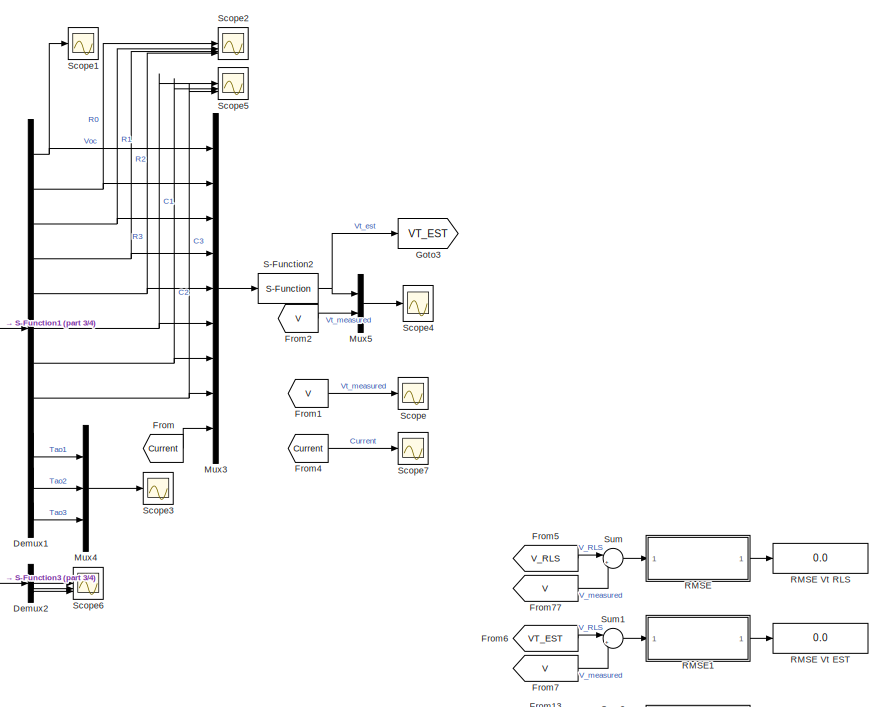
[diagram: root canvas - part 1/4, top right region]
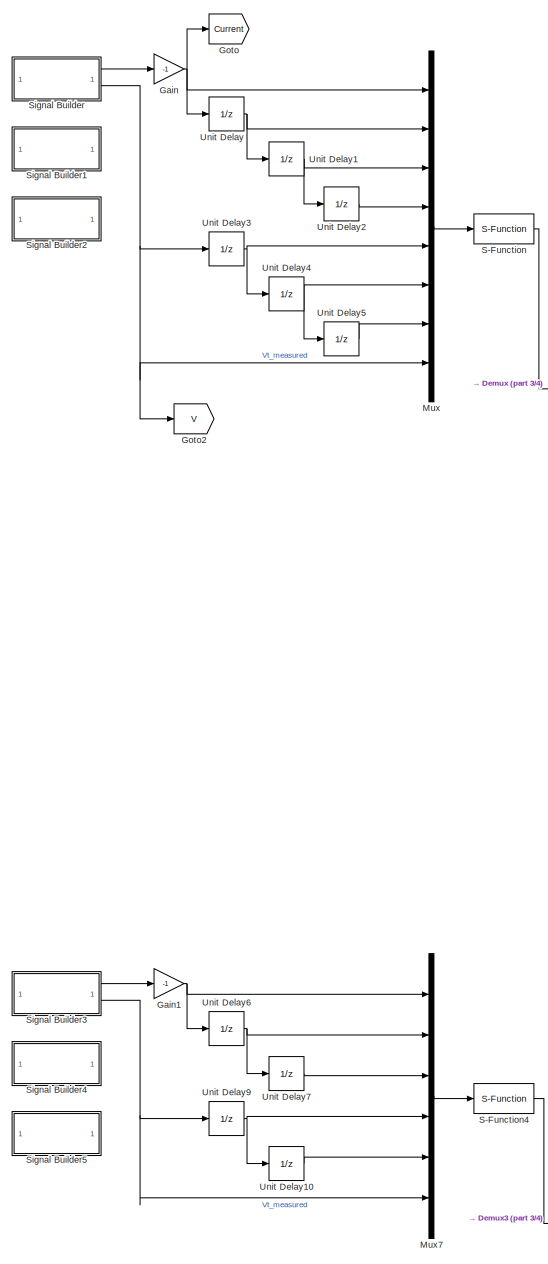
[diagram: root canvas - part 2/4, left side, full height]
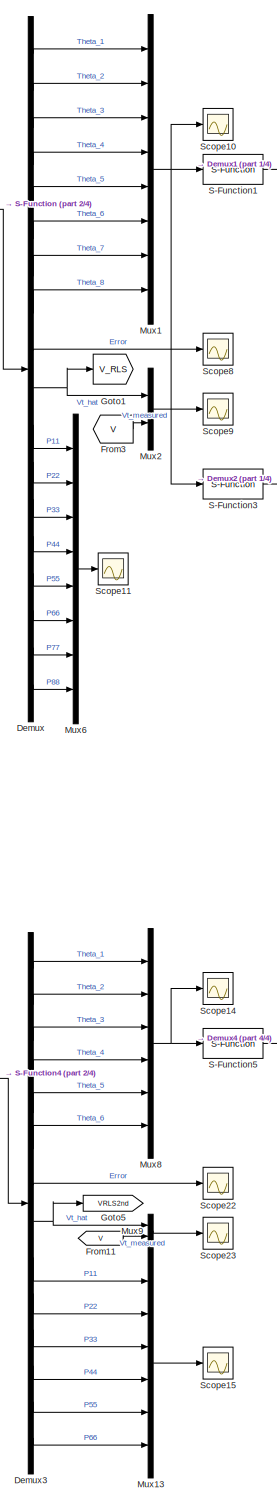
[diagram: root canvas - part 3/4, center side, full height]
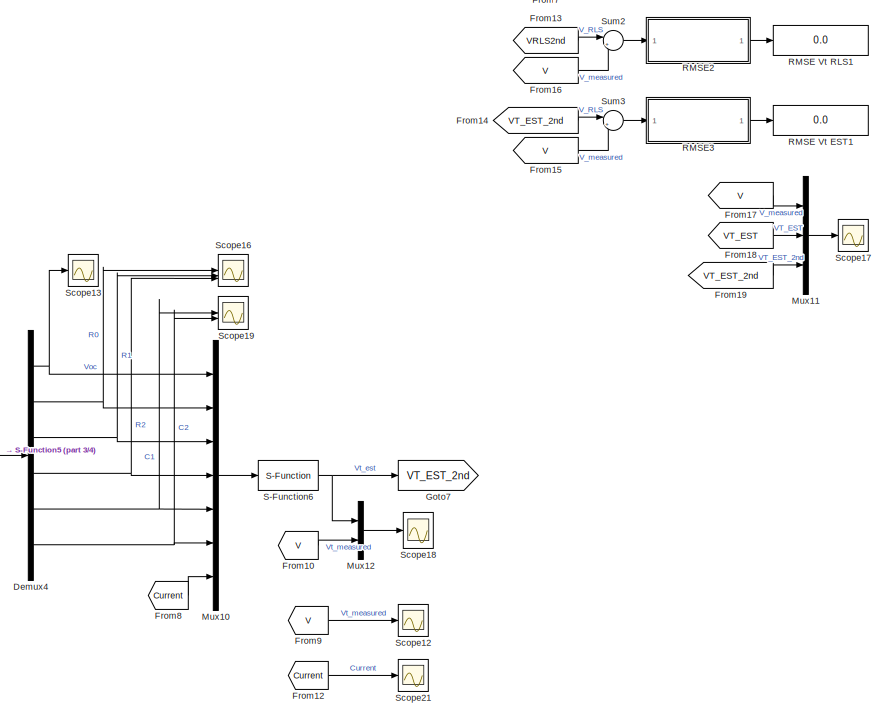
[diagram: root canvas - part 4/4, middle right region]
MODEL slx_dfcc60bb3e79
KIND model
CONFIG AbsTol = auto
CONFIG EnableMultiTasking = off
CONFIG FixedStep = auto
CONFIG MaxStep = auto
CONFIG MinStep = auto
CONFIG RelTol = 1e-3
CONFIG SampleTimeConstraint = Unconstrained
CONFIG SolverName = VariableStepAuto
CONFIG StartTime = 0.0
CONFIG StopTime = 7200
BLOCK [Demux] Demux
  Outputs = 18
BLOCK [Demux] Demux1
  Outputs = 11
BLOCK [Demux] Demux2
  Outputs = 3
BLOCK [Demux] Demux3
  Outputs = 14
BLOCK [Demux] Demux4
  Outputs = 6
BLOCK [From] From
  GotoTag = Current
BLOCK [From] From1
  GotoTag = V
BLOCK [From] From10
  GotoTag = V
BLOCK [From] From11
  GotoTag = V
BLOCK [From] From12
  GotoTag = Current
BLOCK [From] From13
  GotoTag = VRLS2nd
BLOCK [From] From14
  GotoTag = VT_EST_2nd
BLOCK [From] From15
  GotoTag = V
BLOCK [From] From16
  GotoTag = V
BLOCK [From] From17
  GotoTag = V
BLOCK [From] From18
  GotoTag = VT_EST
BLOCK [From] From19
  GotoTag = VT_EST_2nd
BLOCK [From] From2
  GotoTag = V
BLOCK [From] From3
  GotoTag = V
BLOCK [From] From4
  GotoTag = Current
BLOCK [From] From5
  GotoTag = V_RLS
BLOCK [From] From6
  GotoTag = VT_EST
BLOCK [From] From7
  GotoTag = V
BLOCK [From] From77
  GotoTag = V
BLOCK [From] From8
  GotoTag = Current
BLOCK [From] From9
  GotoTag = V
BLOCK [Gain] Gain
  Gain = -1
BLOCK [Gain] Gain1
  Gain = -1
BLOCK [Goto] Goto
  GotoTag = Current
BLOCK [Goto] Goto1
  GotoTag = V_RLS
BLOCK [Goto] Goto2
  GotoTag = V
BLOCK [Goto] Goto3
  GotoTag = VT_EST
BLOCK [Goto] Goto5
  GotoTag = VRLS2nd
BLOCK [Goto] Goto7
  GotoTag = VT_EST_2nd
BLOCK [Mux] Mux
  DisplayOption = bar
  Inputs = 8
BLOCK [Mux] Mux1
  DisplayOption = bar
  Inputs = 8
BLOCK [Mux] Mux10
  DisplayOption = bar
  Inputs = 7
BLOCK [Mux] Mux11
  DisplayOption = bar
  Inputs = 3
BLOCK [Mux] Mux12
  DisplayOption = bar
  Inputs = 2
BLOCK [Mux] Mux13
  DisplayOption = bar
  Inputs = 6
BLOCK [Mux] Mux2
  DisplayOption = bar
  Inputs = 2
BLOCK [Mux] Mux3
  DisplayOption = bar
  Inputs = 9
BLOCK [Mux] Mux4
  DisplayOption = bar
  Inputs = 3
BLOCK [Mux] Mux5
  DisplayOption = bar
  Inputs = 2
BLOCK [Mux] Mux6
  DisplayOption = bar
  Inputs = 8
BLOCK [Mux] Mux7
  DisplayOption = bar
  Inputs = 6
BLOCK [Mux] Mux8
  DisplayOption = bar
  Inputs = 6
BLOCK [Mux] Mux9
  DisplayOption = bar
  Inputs = 2
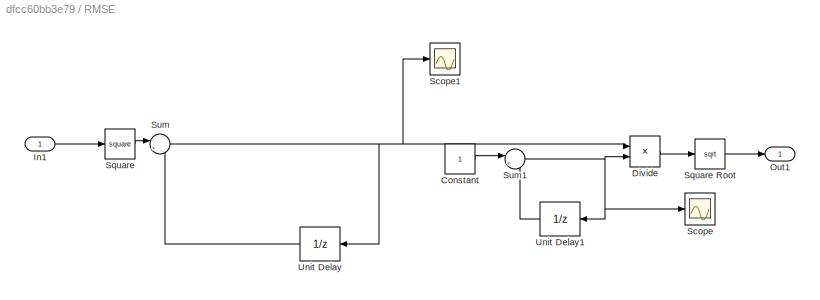
BLOCK [SubSystem] RMSE
BLOCK [Display] RMSE Vt EST
  Decimation = 1
BLOCK [Display] RMSE Vt EST1
  Decimation = 1
BLOCK [Display] RMSE Vt RLS
  Decimation = 1
BLOCK [Display] RMSE Vt RLS1
  Decimation = 1
BLOCK [Constant] RMSE/Constant
BLOCK [Product] RMSE/Divide
  Inputs = */
BLOCK [Inport] RMSE/In1
BLOCK [Outport] RMSE/Out1
BLOCK [Scope] RMSE/Scope
  Floating = off
  NumInputPorts = 1
  ScopeSpecificationString = Simulink.scopes.TimeScopeBlockCfg('CurrentConfiguration', extmgr.ConfigurationSet(extmgr.Configuration('Core','General UI',true),extmgr.Configuration('Core','Source UI',true),extmgr.Configuration('Sources','WiredSimulink',true,'DataLoggingVariableName','ScopeData1'),extmgr.Configuration('Visuals','Time Domain',true,'SerializedDisplays',{struct('MinYLimReal','-1874.00000','MaxYLimReal','16876.00000...<+1414ch>  <repeated x4 — deduplicated; at blocks: Scope>
BLOCK [Scope] RMSE/Scope1
  Floating = off
  NumInputPorts = 1
  ScopeSpecificationString = Simulink.scopes.TimeScopeBlockCfg('CurrentConfiguration', extmgr.ConfigurationSet(extmgr.Configuration('Core','General UI',true),extmgr.Configuration('Core','Source UI',true),extmgr.Configuration('Sources','WiredSimulink',true,'DataLoggingVariableName','ScopeData3'),extmgr.Configuration('Visuals','Time Domain',true,'SerializedDisplays',{struct('MinYLimReal','-28.02161','MaxYLimReal','252.19447','Y...<+1397ch>  <repeated x4 — deduplicated; at blocks: Scope1>
BLOCK [Math] RMSE/Square
  Operator = square
BLOCK [Sqrt] RMSE/Square Root
BLOCK [Sum] RMSE/Sum
  Inputs = |++
BLOCK [Sum] RMSE/Sum1
  Inputs = |++
BLOCK [UnitDelay] RMSE/Unit Delay
  HasFrameUpgradeWarning = on
BLOCK [UnitDelay] RMSE/Unit Delay1
  HasFrameUpgradeWarning = on
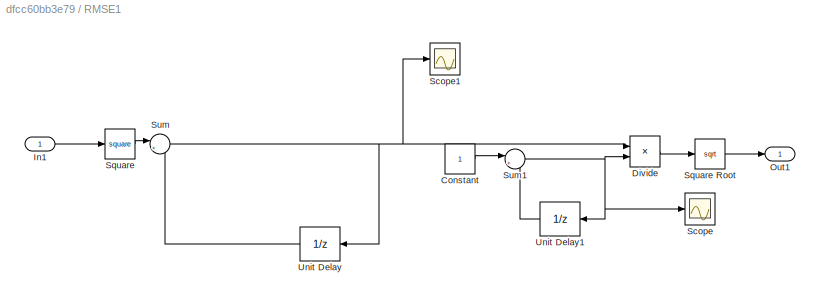
BLOCK [SubSystem] RMSE1
BLOCK [Constant] RMSE1/Constant
BLOCK [Product] RMSE1/Divide
  Inputs = */
BLOCK [Inport] RMSE1/In1
BLOCK [Outport] RMSE1/Out1
BLOCK [Scope] RMSE1/Scope
  Floating = off
  NumInputPorts = 1
BLOCK [Scope] RMSE1/Scope1
  Floating = off
  NumInputPorts = 1
BLOCK [Math] RMSE1/Square
  Operator = square
BLOCK [Sqrt] RMSE1/Square Root
BLOCK [Sum] RMSE1/Sum
  Inputs = |++
BLOCK [Sum] RMSE1/Sum1
  Inputs = |++
BLOCK [UnitDelay] RMSE1/Unit Delay
  HasFrameUpgradeWarning = on
BLOCK [UnitDelay] RMSE1/Unit Delay1
  HasFrameUpgradeWarning = on
BLOCK [SubSystem] RMSE2
BLOCK [Constant] RMSE2/Constant
BLOCK [Product] RMSE2/Divide
  Inputs = */
BLOCK [Inport] RMSE2/In1
BLOCK [Outport] RMSE2/Out1
BLOCK [Scope] RMSE2/Scope
  Floating = off
  NumInputPorts = 1
BLOCK [Scope] RMSE2/Scope1
  Floating = off
  NumInputPorts = 1
BLOCK [Math] RMSE2/Square
  Operator = square
BLOCK [Sqrt] RMSE2/Square Root
BLOCK [Sum] RMSE2/Sum
  Inputs = |++
BLOCK [Sum] RMSE2/Sum1
  Inputs = |++
BLOCK [UnitDelay] RMSE2/Unit Delay
  HasFrameUpgradeWarning = on
BLOCK [UnitDelay] RMSE2/Unit Delay1
  HasFrameUpgradeWarning = on
BLOCK [SubSystem] RMSE3
BLOCK [Constant] RMSE3/Constant
BLOCK [Product] RMSE3/Divide
  Inputs = */
BLOCK [Inport] RMSE3/In1
BLOCK [Outport] RMSE3/Out1
BLOCK [Scope] RMSE3/Scope
  Floating = off
  NumInputPorts = 1
BLOCK [Scope] RMSE3/Scope1
  Floating = off
  NumInputPorts = 1
BLOCK [Math] RMSE3/Square
  Operator = square
BLOCK [Sqrt] RMSE3/Square Root
BLOCK [Sum] RMSE3/Sum
  Inputs = |++
BLOCK [Sum] RMSE3/Sum1
  Inputs = |++
BLOCK [UnitDelay] RMSE3/Unit Delay
  HasFrameUpgradeWarning = on
BLOCK [UnitDelay] RMSE3/Unit Delay1
  HasFrameUpgradeWarning = on
BLOCK [S-Function] S-Function
  EnableBusSupport = off
  FunctionName = RLS18
  SFcnIsStateOwnerBlock = off
  SFunctionDeploymentMode = off
BLOCK [S-Function] S-Function1
  EnableBusSupport = off
  FunctionName = SKEMA_A
  SFcnIsStateOwnerBlock = off
  SFunctionDeploymentMode = off
BLOCK [S-Function] S-Function2
  EnableBusSupport = off
  FunctionName = VT_EST
  SFcnIsStateOwnerBlock = off
  SFunctionDeploymentMode = off
BLOCK [S-Function] S-Function3
  EnableBusSupport = off
  FunctionName = TAU_ONLY
  SFcnIsStateOwnerBlock = off
  SFunctionDeploymentMode = off
BLOCK [S-Function] S-Function4
  EnableBusSupport = off
  FunctionName = RLS_2nd
  SFcnIsStateOwnerBlock = off
  SFunctionDeploymentMode = off
BLOCK [S-Function] S-Function5
  EnableBusSupport = off
  FunctionName = TEST
  SFcnIsStateOwnerBlock = off
  SFunctionDeploymentMode = off
BLOCK [S-Function] S-Function6
  EnableBusSupport = off
  FunctionName = VT_EST_2nd
  SFcnIsStateOwnerBlock = off
  SFunctionDeploymentMode = off
BLOCK [Scope] Scope
  Floating = off
  NumInputPorts = 1
  ScopeSpecificationString = Simulink.scopes.TimeScopeBlockCfg('CurrentConfiguration', extmgr.ConfigurationSet(extmgr.Configuration('Core','General UI',true,'FigureColor',[1 1 1]),extmgr.Configuration('Core','Source UI',true),extmgr.Configuration('Sources','WiredSimulink',true,'DataLoggingVariableName','V_Measured','DataLogging',true,'DataLoggingSaveFormat','StructureWithTime'),extmgr.Configuration('Visuals','Time Domain',tru...<+1716ch>
BLOCK [Scope] Scope1
  Floating = off
  NumInputPorts = 1
  ScopeSpecificationString = Simulink.scopes.TimeScopeBlockCfg('CurrentConfiguration', extmgr.ConfigurationSet(extmgr.Configuration('Core','General UI',true,'FigureColor',[1 1 1]),extmgr.Configuration('Core','Source UI',true),extmgr.Configuration('Sources','WiredSimulink',true,'DataLoggingVariableName','Voc_RLS','DataLoggingSaveFormat','StructureWithTime','DataLoggingDecimation','1','DataLogging',true),extmgr.Configuration('V...<+2743ch>
BLOCK [Scope] Scope10
  Floating = off
  NumInputPorts = 1
  ScopeSpecificationString = Simulink.scopes.TimeScopeBlockCfg('CurrentConfiguration', extmgr.ConfigurationSet(extmgr.Configuration('Core','General UI',true,'FigureColor',[1 1 1]),extmgr.Configuration('Core','Source UI',true),extmgr.Configuration('Sources','WiredSimulink',true,'DataLoggingVariableName','ThetaRLS','DataLoggingSaveFormat','StructureWithTime','DataLoggingDecimation','1','DataLogging',true),extmgr.Configuration('...<+2848ch>
BLOCK [Scope] Scope11
  Floating = off
  NumInputPorts = 1
  ScopeSpecificationString = Simulink.scopes.TimeScopeBlockCfg('CurrentConfiguration', extmgr.ConfigurationSet(extmgr.Configuration('Core','General UI',true,'FigureColor',[1 1 1]),extmgr.Configuration('Core','Source UI',true),extmgr.Configuration('Sources','WiredSimulink',true,'DataLoggingVariableName','KovarianRLS','DataLoggingSaveFormat','StructureWithTime','DataLoggingDecimation','1','DataLogging',true),extmgr.Configuratio...<+2797ch>
BLOCK [Scope] Scope12
  Floating = off
  NumInputPorts = 1
  ScopeSpecificationString = Simulink.scopes.TimeScopeBlockCfg('CurrentConfiguration', extmgr.ConfigurationSet(extmgr.Configuration('Core','General UI',true,'FigureColor',[1 1 1]),extmgr.Configuration('Core','Source UI',true),extmgr.Configuration('Sources','WiredSimulink',true,'DataLoggingVariableName','ScopeData1'),extmgr.Configuration('Visuals','Time Domain',true,'SerializedDisplays',{struct('MinYLimReal','2.43753','MaxYLim...<+1526ch>
BLOCK [Scope] Scope13
  Floating = off
  NumInputPorts = 1
  ScopeSpecificationString = Simulink.scopes.TimeScopeBlockCfg('CurrentConfiguration', extmgr.ConfigurationSet(extmgr.Configuration('Core','General UI',true,'FigureColor',[1 1 1]),extmgr.Configuration('Core','Source UI',true),extmgr.Configuration('Sources','WiredSimulink',true,'DataLoggingVariableName','ScopeData2','DataLoggingSaveFormat','StructureWithTime','DataLoggingDecimation','1'),extmgr.Configuration('Visuals','Time Do...<+2614ch>
BLOCK [Scope] Scope14
  Floating = off
  NumInputPorts = 1
  ScopeSpecificationString = Simulink.scopes.TimeScopeBlockCfg('CurrentConfiguration', extmgr.ConfigurationSet(extmgr.Configuration('Core','General UI',true,'FigureColor',[1 1 1]),extmgr.Configuration('Core','Source UI',true),extmgr.Configuration('Sources','WiredSimulink',true,'DataLoggingVariableName','ScopeData3','DataLoggingSaveFormat','StructureWithTime','DataLoggingDecimation','1'),extmgr.Configuration('Visuals','Time Do...<+2705ch>
BLOCK [Scope] Scope15
  Floating = off
  NumInputPorts = 1
  ScopeSpecificationString = Simulink.scopes.TimeScopeBlockCfg('CurrentConfiguration', extmgr.ConfigurationSet(extmgr.Configuration('Core','General UI',true,'FigureColor',[1 1 1]),extmgr.Configuration('Core','Source UI',true),extmgr.Configuration('Sources','WiredSimulink',true,'DataLoggingVariableName','ScopeData4','DataLoggingSaveFormat','StructureWithTime','DataLoggingDecimation','1'),extmgr.Configuration('Visuals','Time Do...<+2695ch>
BLOCK [Scope] Scope16
  Floating = off
  NumInputPorts = 3
  ScopeSpecificationString = Simulink.scopes.TimeScopeBlockCfg('CurrentConfiguration', extmgr.ConfigurationSet(extmgr.Configuration('Core','General UI',true,'FigureColor',[1 1 1]),extmgr.Configuration('Core','Source UI',true),extmgr.Configuration('Sources','WiredSimulink',true,'DataLoggingVariableName','ScopeData5','DataLoggingSaveFormat','StructureWithTime','DataLoggingDecimation','1'),extmgr.Configuration('Visuals','Time Do...<+5254ch>
BLOCK [Scope] Scope17
  Floating = off
  NumInputPorts = 1
  ScopeSpecificationString = Simulink.scopes.TimeScopeBlockCfg('CurrentConfiguration', extmgr.ConfigurationSet(extmgr.Configuration('Core','General UI',true,'FigureColor',[1 1 1]),extmgr.Configuration('Core','Source UI',true),extmgr.Configuration('Sources','WiredSimulink',true,'DataLoggingVariableName','ScopeData6'),extmgr.Configuration('Visuals','Time Domain',true,'SerializedDisplays',{struct('MinYLimReal','2','MaxYLimReal',...<+1838ch>
BLOCK [Scope] Scope18
  Floating = off
  NumInputPorts = 1
  ScopeSpecificationString = Simulink.scopes.TimeScopeBlockCfg('CurrentConfiguration', extmgr.ConfigurationSet(extmgr.Configuration('Core','General UI',true,'FigureColor',[1 1 1]),extmgr.Configuration('Core','Source UI',true),extmgr.Configuration('Sources','WiredSimulink',true,'DataLoggingVariableName','ScopeData7','DataLoggingSaveFormat','StructureWithTime','DataLoggingDecimation','1'),extmgr.Configuration('Visuals','Time Do...<+2603ch>
BLOCK [Scope] Scope19
  Floating = off
  NumInputPorts = 2
  ScopeSpecificationString = Simulink.scopes.TimeScopeBlockCfg('CurrentConfiguration', extmgr.ConfigurationSet(extmgr.Configuration('Core','General UI',true,'FigureColor',[1 1 1]),extmgr.Configuration('Core','Source UI',true),extmgr.Configuration('Sources','WiredSimulink',true,'DataLoggingVariableName','ScopeData8','DataLoggingSaveFormat','StructureWithTime','DataLoggingDecimation','1'),extmgr.Configuration('Visuals','Time Do...<+4320ch>
BLOCK [Scope] Scope2
  Floating = off
  NumInputPorts = 4
  ScopeSpecificationString = Simulink.scopes.TimeScopeBlockCfg('CurrentConfiguration', extmgr.ConfigurationSet(extmgr.Configuration('Core','General UI',true,'FigureColor',[1 1 1]),extmgr.Configuration('Core','Source UI',true),extmgr.Configuration('Sources','WiredSimulink',true,'DataLoggingVariableName','Resistance','DataLoggingSaveFormat','StructureWithTime','DataLoggingDecimation','1','DataLogging',true),extmgr.Configuration...<+5330ch>
BLOCK [Scope] Scope21
  Floating = off
  NumInputPorts = 1
  ScopeSpecificationString = Simulink.scopes.TimeScopeBlockCfg('CurrentConfiguration', extmgr.ConfigurationSet(extmgr.Configuration('Core','General UI',true,'FigureColor',[1 1 1]),extmgr.Configuration('Core','Source UI',true),extmgr.Configuration('Sources','WiredSimulink',true,'DataLoggingVariableName','ScopeData10'),extmgr.Configuration('Visuals','Time Domain',true,'SerializedDisplays',{struct('MinYLimReal','-1.41068','MaxYL...<+1541ch>
BLOCK [Scope] Scope22
  Floating = off
  NumInputPorts = 1
  ScopeSpecificationString = Simulink.scopes.TimeScopeBlockCfg('CurrentConfiguration', extmgr.ConfigurationSet(extmgr.Configuration('Core','General UI',true),extmgr.Configuration('Core','Source UI',true),extmgr.Configuration('Sources','WiredSimulink',true,'DataLoggingVariableName','ScopeData11'),extmgr.Configuration('Visuals','Time Domain',true,'SerializedDisplays',{struct('MinYLimReal','-0.6205','MaxYLimReal','4.01782','YLab...<+1418ch>
BLOCK [Scope] Scope23
  Floating = off
  NumInputPorts = 1
  ScopeSpecificationString = Simulink.scopes.TimeScopeBlockCfg('CurrentConfiguration', extmgr.ConfigurationSet(extmgr.Configuration('Core','General UI',true,'FigureColor',[1 1 1]),extmgr.Configuration('Core','Source UI',true),extmgr.Configuration('Sources','WiredSimulink',true,'DataLoggingVariableName','ScopeData12','DataLoggingSaveFormat','StructureWithTime'),extmgr.Configuration('Visuals','Time Domain',true,'SerializedDispl...<+1722ch>
BLOCK [Scope] Scope3
  Floating = off
  NumInputPorts = 1
  ScopeSpecificationString = Simulink.scopes.TimeScopeBlockCfg('CurrentConfiguration', extmgr.ConfigurationSet(extmgr.Configuration('Core','General UI',true,'FigureColor',[1 1 1]),extmgr.Configuration('Core','Source UI',true),extmgr.Configuration('Sources','WiredSimulink',true,'DataLoggingVariableName','Tao','DataLoggingSaveFormat','StructureWithTime','DataLoggingDecimation','1','DataLogging',true),extmgr.Configuration('Visua...<+2691ch>
BLOCK [Scope] Scope4
  Floating = off
  NumInputPorts = 1
  ScopeSpecificationString = Simulink.scopes.TimeScopeBlockCfg('CurrentConfiguration', extmgr.ConfigurationSet(extmgr.Configuration('Core','General UI',true,'FigureColor',[1 1 1]),extmgr.Configuration('Core','Source UI',true),extmgr.Configuration('Sources','WiredSimulink',true,'DataLoggingVariableName','V_Constructed','DataLoggingSaveFormat','StructureWithTime','DataLoggingDecimation','1','DataLogging',true),extmgr.Configurat...<+2785ch>
BLOCK [Scope] Scope5
  Floating = off
  NumInputPorts = 3
  ScopeSpecificationString = Simulink.scopes.TimeScopeBlockCfg('CurrentConfiguration', extmgr.ConfigurationSet(extmgr.Configuration('Core','General UI',true,'FigureColor',[1 1 1]),extmgr.Configuration('Core','Source UI',true),extmgr.Configuration('Sources','WiredSimulink',true,'DataLoggingVariableName','Capacitance','DataLoggingSaveFormat','StructureWithTime','DataLoggingDecimation','1','DataLogging',true),extmgr.Configuratio...<+4407ch>
BLOCK [Scope] Scope6
  Floating = off
  NumInputPorts = 3
  ScopeSpecificationString = Simulink.scopes.TimeScopeBlockCfg('CurrentConfiguration', extmgr.ConfigurationSet(extmgr.Configuration('Core','General UI',true,'FigureColor',[1 1 1]),extmgr.Configuration('Core','Source UI',true),extmgr.Configuration('Sources','WiredSimulink',true,'DataLoggingVariableName','TestTao','DataLoggingSaveFormat','StructureWithTime','DataLoggingDecimation','1'),extmgr.Configuration('Visuals','Time Domai...<+4304ch>
BLOCK [Scope] Scope7
  Floating = off
  NumInputPorts = 1
  ScopeSpecificationString = Simulink.scopes.TimeScopeBlockCfg('CurrentConfiguration', extmgr.ConfigurationSet(extmgr.Configuration('Core','General UI',true,'FigureColor',[1 1 1]),extmgr.Configuration('Core','Source UI',true),extmgr.Configuration('Sources','WiredSimulink',true,'DataLoggingVariableName','Current_Measured','DataLogging',true,'DataLoggingSaveFormat','StructureWithTime'),extmgr.Configuration('Visuals','Time Domai...<+1714ch>
BLOCK [Scope] Scope8
  Floating = off
  NumInputPorts = 1
  ScopeSpecificationString = Simulink.scopes.TimeScopeBlockCfg('CurrentConfiguration', extmgr.ConfigurationSet(extmgr.Configuration('Core','General UI',true),extmgr.Configuration('Core','Source UI',true),extmgr.Configuration('Sources','WiredSimulink',true,'DataLoggingVariableName','ScopeData8'),extmgr.Configuration('Visuals','Time Domain',true,'SerializedDisplays',{struct('MinYLimReal','-0.62226','MaxYLimReal','4.01802','YLab...<+1419ch>
BLOCK [Scope] Scope9
  Floating = off
  NumInputPorts = 1
  ScopeSpecificationString = Simulink.scopes.TimeScopeBlockCfg('CurrentConfiguration', extmgr.ConfigurationSet(extmgr.Configuration('Core','General UI',true,'FigureColor',[1 1 1]),extmgr.Configuration('Core','Source UI',true),extmgr.Configuration('Sources','WiredSimulink',true,'DataLoggingVariableName','V_RLS','DataLoggingSaveFormat','StructureWithTime','DataLogging',true),extmgr.Configuration('Visuals','Time Domain',true,'Se...<+1831ch>
BLOCK [SubSystem] Signal Builder
  ClipboardFcn = sigbuilder_block('clipboard');
  CloseFcn = sigbuilder_block('close');
  ContinueFcn = sigbuilder_block('continue');
  CopyFcn = sigbuilder_block('copy');
  DeleteFcn = sigbuilder_block('delete');
  LoadFcn = sigbuilder_block('load');
  MaskHideContents = on
  ModelCloseFcn = sigbuilder_block('modelClose');
  NameChangeFcn = sigbuilder_block('namechange');
  OpenFcn = sigbuilder_block('open',[224 102.5 401 351.5 ]);
  PauseFcn = sigbuilder_block('pause');
  PreSaveFcn = sigbuilder_block('preSave');
  StartFcn = sigbuilder_block('start');
  StopFcn = sigbuilder_block('stop');
  Tag = STV Subsys
BLOCK [Outport] Signal Builder/Current(A)
  Tag = STV Outport
BLOCK [Demux] Signal Builder/Demux
  DisplayOption = none
  Outputs = 2
  Tag = STV Demux
BLOCK [FromWorkspace] Signal Builder/FromWs
  Tag = STV FromWs
  VariableName = tuvar
BLOCK [Outport] Signal Builder/Voltage(V)
  Port = 2
  Tag = STV Outport
BLOCK [SubSystem] Signal Builder1
  ClipboardFcn = sigbuilder_block('clipboard');
  CloseFcn = sigbuilder_block('close');
  ContinueFcn = sigbuilder_block('continue');
  CopyFcn = sigbuilder_block('copy');
  DeleteFcn = sigbuilder_block('delete');
  LoadFcn = sigbuilder_block('load');
  MaskHideContents = on
  ModelCloseFcn = sigbuilder_block('modelClose');
  NameChangeFcn = sigbuilder_block('namechange');
  OpenFcn = sigbuilder_block('open',[224 102.5 401 351.5 ]);
  PauseFcn = sigbuilder_block('pause');
  PreSaveFcn = sigbuilder_block('preSave');
  StartFcn = sigbuilder_block('start');
  StopFcn = sigbuilder_block('stop');
  Tag = STV Subsys
BLOCK [Outport] Signal Builder1/Current(A)
  Tag = STV Outport
BLOCK [Demux] Signal Builder1/Demux
  DisplayOption = none
  Outputs = 2
  Tag = STV Demux
BLOCK [FromWorkspace] Signal Builder1/FromWs
  Tag = STV FromWs
  VariableName = tuvar
BLOCK [Outport] Signal Builder1/Voltage(V)
  Port = 2
  Tag = STV Outport
BLOCK [SubSystem] Signal Builder2
  ClipboardFcn = sigbuilder_block('clipboard');
  CloseFcn = sigbuilder_block('close');
  ContinueFcn = sigbuilder_block('continue');
  CopyFcn = sigbuilder_block('copy');
  DeleteFcn = sigbuilder_block('delete');
  LoadFcn = sigbuilder_block('load');
  MaskHideContents = on
  ModelCloseFcn = sigbuilder_block('modelClose');
  NameChangeFcn = sigbuilder_block('namechange');
  OpenFcn = sigbuilder_block('open',[224 102.5 401 351.5 ]);
  PauseFcn = sigbuilder_block('pause');
  PreSaveFcn = sigbuilder_block('preSave');
  StartFcn = sigbuilder_block('start');
  StopFcn = sigbuilder_block('stop');
  Tag = STV Subsys
BLOCK [Outport] Signal Builder2/Current(A)
  Tag = STV Outport
BLOCK [Demux] Signal Builder2/Demux
  DisplayOption = none
  Outputs = 2
  Tag = STV Demux
BLOCK [FromWorkspace] Signal Builder2/FromWs
  Tag = STV FromWs
  VariableName = tuvar
BLOCK [Outport] Signal Builder2/Voltage(V)
  Port = 2
  Tag = STV Outport
BLOCK [SubSystem] Signal Builder3
  ClipboardFcn = sigbuilder_block('clipboard');
  CloseFcn = sigbuilder_block('close');
  ContinueFcn = sigbuilder_block('continue');
  CopyFcn = sigbuilder_block('copy');
  DeleteFcn = sigbuilder_block('delete');
  LoadFcn = sigbuilder_block('load');
  MaskHideContents = on
  ModelCloseFcn = sigbuilder_block('modelClose');
  NameChangeFcn = sigbuilder_block('namechange');
  OpenFcn = sigbuilder_block('open',[224 102.5 401 351.5 ]);
  PauseFcn = sigbuilder_block('pause');
  PreSaveFcn = sigbuilder_block('preSave');
  StartFcn = sigbuilder_block('start');
  StopFcn = sigbuilder_block('stop');
  Tag = STV Subsys
BLOCK [Outport] Signal Builder3/Current(A)
  Tag = STV Outport
BLOCK [Demux] Signal Builder3/Demux
  DisplayOption = none
  Outputs = 2
  Tag = STV Demux
BLOCK [FromWorkspace] Signal Builder3/FromWs
  Tag = STV FromWs
  VariableName = tuvar
BLOCK [Outport] Signal Builder3/Voltage(V)
  Port = 2
  Tag = STV Outport
BLOCK [SubSystem] Signal Builder4
  ClipboardFcn = sigbuilder_block('clipboard');
  CloseFcn = sigbuilder_block('close');
  ContinueFcn = sigbuilder_block('continue');
  CopyFcn = sigbuilder_block('copy');
  DeleteFcn = sigbuilder_block('delete');
  LoadFcn = sigbuilder_block('load');
  MaskHideContents = on
  ModelCloseFcn = sigbuilder_block('modelClose');
  NameChangeFcn = sigbuilder_block('namechange');
  OpenFcn = sigbuilder_block('open',[224 102.5 401 351.5 ]);
  PauseFcn = sigbuilder_block('pause');
  PreSaveFcn = sigbuilder_block('preSave');
  StartFcn = sigbuilder_block('start');
  StopFcn = sigbuilder_block('stop');
  Tag = STV Subsys
BLOCK [Outport] Signal Builder4/Current(A)
  Tag = STV Outport
BLOCK [Demux] Signal Builder4/Demux
  DisplayOption = none
  Outputs = 2
  Tag = STV Demux
BLOCK [FromWorkspace] Signal Builder4/FromWs
  Tag = STV FromWs
  VariableName = tuvar
BLOCK [Outport] Signal Builder4/Voltage(V)
  Port = 2
  Tag = STV Outport
BLOCK [SubSystem] Signal Builder5
  ClipboardFcn = sigbuilder_block('clipboard');
  CloseFcn = sigbuilder_block('close');
  ContinueFcn = sigbuilder_block('continue');
  CopyFcn = sigbuilder_block('copy');
  DeleteFcn = sigbuilder_block('delete');
  LoadFcn = sigbuilder_block('load');
  MaskHideContents = on
  ModelCloseFcn = sigbuilder_block('modelClose');
  NameChangeFcn = sigbuilder_block('namechange');
  OpenFcn = sigbuilder_block('open',[224 102.5 401 351.5 ]);
  PauseFcn = sigbuilder_block('pause');
  PreSaveFcn = sigbuilder_block('preSave');
  StartFcn = sigbuilder_block('start');
  StopFcn = sigbuilder_block('stop');
  Tag = STV Subsys
BLOCK [Outport] Signal Builder5/Current(A)
  Tag = STV Outport
BLOCK [Demux] Signal Builder5/Demux
  DisplayOption = none
  Outputs = 2
  Tag = STV Demux
BLOCK [FromWorkspace] Signal Builder5/FromWs
  Tag = STV FromWs
  VariableName = tuvar
BLOCK [Outport] Signal Builder5/Voltage(V)
  Port = 2
  Tag = STV Outport
BLOCK [Sum] Sum
  Inputs = |+-
BLOCK [Sum] Sum1
  Inputs = |+-
BLOCK [Sum] Sum2
  Inputs = |+-
BLOCK [Sum] Sum3
  Inputs = |+-
BLOCK [UnitDelay] Unit Delay
  HasFrameUpgradeWarning = on
  SampleTime = -1
BLOCK [UnitDelay] Unit Delay1
  HasFrameUpgradeWarning = on
  SampleTime = -1
BLOCK [UnitDelay] Unit Delay10
  HasFrameUpgradeWarning = on
  SampleTime = -1
BLOCK [UnitDelay] Unit Delay2
  HasFrameUpgradeWarning = on
  SampleTime = -1
BLOCK [UnitDelay] Unit Delay3
  HasFrameUpgradeWarning = on
  SampleTime = -1
BLOCK [UnitDelay] Unit Delay4
  HasFrameUpgradeWarning = on
  SampleTime = -1
BLOCK [UnitDelay] Unit Delay5
  HasFrameUpgradeWarning = on
  SampleTime = -1
BLOCK [UnitDelay] Unit Delay6
  HasFrameUpgradeWarning = on
  SampleTime = -1
BLOCK [UnitDelay] Unit Delay7
  HasFrameUpgradeWarning = on
  SampleTime = -1
BLOCK [UnitDelay] Unit Delay9
  HasFrameUpgradeWarning = on
  SampleTime = -1
NET Demux1:1 -> Mux3:1, Scope1:1
LINE Demux1:10 -> Mux4:2
LINE Demux1:11 -> Mux4:3
NET Demux1:2 -> Mux3:2, Scope2:1
NET Demux1:3 -> Mux3:3, Scope2:2
NET Demux1:4 -> Mux3:4, Scope2:3
NET Demux1:5 -> Mux3:5, Scope2:4
NET Demux1:6 -> Mux3:6, Scope5:1
NET Demux1:7 -> Mux3:7, Scope5:2
NET Demux1:8 -> Mux3:8, Scope5:3
LINE Demux1:9 -> Mux4:1
LINE Demux2:1 -> Scope6:1
LINE Demux2:2 -> Scope6:2
LINE Demux2:3 -> Scope6:3
LINE Demux3:1 -> Mux8:1
LINE Demux3:10 -> Mux13:2
LINE Demux3:11 -> Mux13:3
LINE Demux3:12 -> Mux13:4
LINE Demux3:13 -> Mux13:5
LINE Demux3:14 -> Mux13:6
LINE Demux3:2 -> Mux8:2
LINE Demux3:3 -> Mux8:3
LINE Demux3:4 -> Mux8:4
LINE Demux3:5 -> Mux8:5
LINE Demux3:6 -> Mux8:6
LINE Demux3:7 -> Scope22:1
NET Demux3:8 -> Goto5:1, Mux9:1
LINE Demux3:9 -> Mux13:1
NET Demux4:1 -> Mux10:1, Scope13:1
NET Demux4:2 -> Mux10:2, Scope16:1
NET Demux4:3 -> Mux10:3, Scope16:2
NET Demux4:4 -> Mux10:4, Scope16:3
NET Demux4:5 -> Mux10:5, Scope19:1
NET Demux4:6 -> Mux10:6, Scope19:2
LINE Demux:1 -> Mux1:1
NET Demux:10 -> Goto1:1, Mux2:1
LINE Demux:11 -> Mux6:1
LINE Demux:12 -> Mux6:2
LINE Demux:13 -> Mux6:3
LINE Demux:14 -> Mux6:4
LINE Demux:15 -> Mux6:5
LINE Demux:16 -> Mux6:6
LINE Demux:17 -> Mux6:7
LINE Demux:18 -> Mux6:8
LINE Demux:2 -> Mux1:2
LINE Demux:3 -> Mux1:3
LINE Demux:4 -> Mux1:4
LINE Demux:5 -> Mux1:5
LINE Demux:6 -> Mux1:6
LINE Demux:7 -> Mux1:7
LINE Demux:8 -> Mux1:8
LINE Demux:9 -> Scope8:1
LINE From10:1 -> Mux12:2
LINE From11:1 -> Mux9:2
LINE From12:1 -> Scope21:1
LINE From13:1 -> Sum2:1
LINE From14:1 -> Sum3:1
LINE From15:1 -> Sum3:2
LINE From16:1 -> Sum2:2
LINE From17:1 -> Mux11:1
LINE From18:1 -> Mux11:2
LINE From19:1 -> Mux11:3
LINE From1:1 -> Scope:1
LINE From2:1 -> Mux5:2
LINE From3:1 -> Mux2:2
LINE From4:1 -> Scope7:1
LINE From5:1 -> Sum:1
LINE From6:1 -> Sum1:1
LINE From77:1 -> Sum:2
LINE From7:1 -> Sum1:2
LINE From8:1 -> Mux10:7
LINE From9:1 -> Scope12:1
LINE From:1 -> Mux3:9
NET Gain1:1 -> Mux7:1, Unit Delay6:1
NET Gain:1 -> Goto:1, Mux:1, Unit Delay:1
LINE Mux10:1 -> S-Function6:1
LINE Mux11:1 -> Scope17:1
LINE Mux12:1 -> Scope18:1
LINE Mux13:1 -> Scope15:1
NET Mux1:1 -> S-Function1:1, S-Function3:1, Scope10:1
LINE Mux2:1 -> Scope9:1
LINE Mux3:1 -> S-Function2:1
LINE Mux4:1 -> Scope3:1
LINE Mux5:1 -> Scope4:1
LINE Mux6:1 -> Scope11:1
LINE Mux7:1 -> S-Function4:1
NET Mux8:1 -> S-Function5:1, Scope14:1
LINE Mux9:1 -> Scope23:1
LINE Mux:1 -> S-Function:1
LINE RMSE/Constant:1 -> RMSE/Sum1:1
LINE RMSE/Divide:1 -> RMSE/Square Root:1
LINE RMSE/In1:1 -> RMSE/Square:1
LINE RMSE/Square Root:1 -> RMSE/Out1:1
LINE RMSE/Square:1 -> RMSE/Sum:1
NET RMSE/Sum1:1 -> RMSE/Divide:2, RMSE/Scope:1, RMSE/Unit Delay1:1
NET RMSE/Sum:1 -> RMSE/Divide:1, RMSE/Scope1:1, RMSE/Unit Delay:1
LINE RMSE/Unit Delay1:1 -> RMSE/Sum1:2
LINE RMSE/Unit Delay:1 -> RMSE/Sum:2
LINE RMSE1/Constant:1 -> RMSE1/Sum1:1
LINE RMSE1/Divide:1 -> RMSE1/Square Root:1
LINE RMSE1/In1:1 -> RMSE1/Square:1
LINE RMSE1/Square Root:1 -> RMSE1/Out1:1
LINE RMSE1/Square:1 -> RMSE1/Sum:1
NET RMSE1/Sum1:1 -> RMSE1/Divide:2, RMSE1/Scope:1, RMSE1/Unit Delay1:1
NET RMSE1/Sum:1 -> RMSE1/Divide:1, RMSE1/Scope1:1, RMSE1/Unit Delay:1
LINE RMSE1/Unit Delay1:1 -> RMSE1/Sum1:2
LINE RMSE1/Unit Delay:1 -> RMSE1/Sum:2
LINE RMSE1:1 -> RMSE Vt EST:1
LINE RMSE2/Constant:1 -> RMSE2/Sum1:1
LINE RMSE2/Divide:1 -> RMSE2/Square Root:1
LINE RMSE2/In1:1 -> RMSE2/Square:1
LINE RMSE2/Square Root:1 -> RMSE2/Out1:1
LINE RMSE2/Square:1 -> RMSE2/Sum:1
NET RMSE2/Sum1:1 -> RMSE2/Divide:2, RMSE2/Scope:1, RMSE2/Unit Delay1:1
NET RMSE2/Sum:1 -> RMSE2/Divide:1, RMSE2/Scope1:1, RMSE2/Unit Delay:1
LINE RMSE2/Unit Delay1:1 -> RMSE2/Sum1:2
LINE RMSE2/Unit Delay:1 -> RMSE2/Sum:2
LINE RMSE2:1 -> RMSE Vt RLS1:1
LINE RMSE3/Constant:1 -> RMSE3/Sum1:1
LINE RMSE3/Divide:1 -> RMSE3/Square Root:1
LINE RMSE3/In1:1 -> RMSE3/Square:1
LINE RMSE3/Square Root:1 -> RMSE3/Out1:1
LINE RMSE3/Square:1 -> RMSE3/Sum:1
NET RMSE3/Sum1:1 -> RMSE3/Divide:2, RMSE3/Scope:1, RMSE3/Unit Delay1:1
NET RMSE3/Sum:1 -> RMSE3/Divide:1, RMSE3/Scope1:1, RMSE3/Unit Delay:1
LINE RMSE3/Unit Delay1:1 -> RMSE3/Sum1:2
LINE RMSE3/Unit Delay:1 -> RMSE3/Sum:2
LINE RMSE3:1 -> RMSE Vt EST1:1
LINE RMSE:1 -> RMSE Vt RLS:1
LINE S-Function1:1 -> Demux1:1
NET S-Function2:1 -> Goto3:1, Mux5:1
LINE S-Function3:1 -> Demux2:1
LINE S-Function4:1 -> Demux3:1
LINE S-Function5:1 -> Demux4:1
NET S-Function6:1 -> Goto7:1, Mux12:1
LINE S-Function:1 -> Demux:1
LINE Signal Builder3:1 -> Gain1:1
NET Signal Builder3:2 -> Mux7:6, Unit Delay9:1
LINE Signal Builder:1 -> Gain:1
NET Signal Builder:2 -> Goto2:1, Mux:8, Unit Delay3:1
LINE Sum1:1 -> RMSE1:1
LINE Sum2:1 -> RMSE2:1
LINE Sum3:1 -> RMSE3:1
LINE Sum:1 -> RMSE:1
LINE Unit Delay10:1 -> Mux7:5
NET Unit Delay1:1 -> Mux:3, Unit Delay2:1
LINE Unit Delay2:1 -> Mux:4
NET Unit Delay3:1 -> Mux:5, Unit Delay4:1
NET Unit Delay4:1 -> Mux:6, Unit Delay5:1
LINE Unit Delay5:1 -> Mux:7
NET Unit Delay6:1 -> Mux7:2, Unit Delay7:1
LINE Unit Delay7:1 -> Mux7:3
NET Unit Delay9:1 -> Mux7:4, Unit Delay10:1
NET Unit Delay:1 -> Mux:2, Unit Delay1:1
note: NET lines group one-source signal fan-out (src -> all destinations, sorted); 1:1 wires keep LINE
